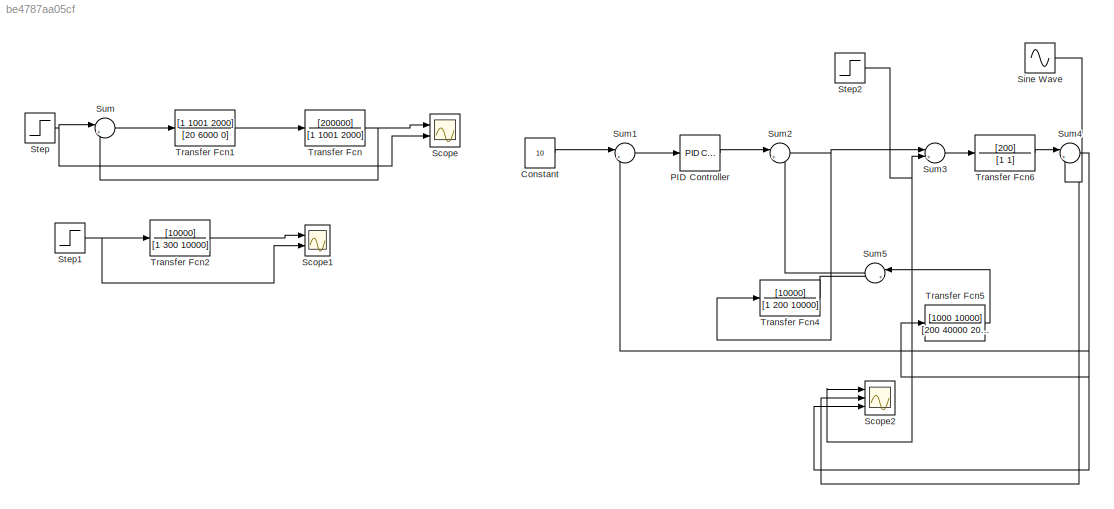
MODEL slx_be4787aa05cf
KIND model
CONFIG AbsTol = auto
CONFIG FixedStep = auto
CONFIG MaxStep = auto
CONFIG MinStep = auto
CONFIG RelTol = 1e-3
CONFIG SampleTimeConstraint = Unconstrained
CONFIG Solver = VariableStepAuto
CONFIG SolverMode = Auto
CONFIG SolverName = VariableStepAuto
CONFIG StartTime = 0.0
CONFIG StopTime = 10.0
BLOCK [Constant] Constant
  SampleTime = 0.5
  Value = 10
BLOCK [Reference] PID Controller  REF=simulink/Continuous/PID Controller
  Ports = [1, 1]
  SourceBlock = simulink/Continuous/PID Controller
  SourceType = PID 1dof
BLOCK [Scope] Scope
  NumInputPorts = 2
  Ports = [2]
  ScopeSpecificationString = Simulink.scopes.TimeScopeBlockCfg('CurrentConfiguration', extmgr.ConfigurationSet(extmgr.Configuration('Core','General UI',true),extmgr.Configuration('Core','Source UI',true),extmgr.Configuration('Sources','WiredSimulink',true),extmgr.Configuration('Visuals','Time Domain',true,'SerializedDisplays',{struct('MinYLimReal','-0.125','MaxYLimReal','1.125','YLabelReal','','MinYLimMag','0.00000','MaxYLimM...<+1423ch>
BLOCK [Scope] Scope1
  NumInputPorts = 2
  Ports = [2]
  ScopeSpecificationString = Simulink.scopes.TimeScopeBlockCfg('CurrentConfiguration', extmgr.ConfigurationSet(extmgr.Configuration('Core','General UI',true),extmgr.Configuration('Core','Source UI',true),extmgr.Configuration('Sources','WiredSimulink',true,'DataLoggingVariableName','ScopeData1'),extmgr.Configuration('Visuals','Time Domain',true,'SerializedDisplays',{struct('MinYLimReal','-0.08894','MaxYLimReal','1.3111','YLabe...<+1447ch>
BLOCK [Scope] Scope2
  NumInputPorts = 3
  Ports = [3]
  ScopeSpecificationString = Simulink.scopes.TimeScopeBlockCfg('CurrentConfiguration', extmgr.ConfigurationSet(extmgr.Configuration('Core','General UI',true),extmgr.Configuration('Core','Source UI',true),extmgr.Configuration('Sources','WiredSimulink',true,'DataLoggingVariableName','ScopeData1'),extmgr.Configuration('Visuals','Time Domain',true,'TimeAxisLabels','All','SerializedDisplays',{struct('MinYLimReal','-0.125','MaxYLim...<+2802ch>
BLOCK [Sin] Sine Wave
  Frequency = 35/6.2*3.14
  Ports = [0, 1]
  SampleTime = 0
BLOCK [Step] Step
  SampleTime = 0
BLOCK [Step] Step1
  SampleTime = 0
BLOCK [Step] Step2
  SampleTime = 1
BLOCK [Sum] Sum
  IconShape = round
  InputSameDT = off
  Inputs = |+-
  OutDataTypeStr = Inherit: Inherit via internal rule
  Ports = [2, 1]
  SaturateOnIntegerOverflow = off
BLOCK [Sum] Sum1
  IconShape = round
  InputSameDT = off
  Inputs = |+-
  OutDataTypeStr = Inherit: Inherit via internal rule
  Ports = [2, 1]
  SaturateOnIntegerOverflow = off
BLOCK [Sum] Sum2
  IconShape = round
  InputSameDT = off
  Inputs = |+-
  OutDataTypeStr = Inherit: Inherit via internal rule
  Ports = [2, 1]
  SaturateOnIntegerOverflow = off
BLOCK [Sum] Sum3
  IconShape = round
  InputSameDT = off
  Inputs = |++
  OutDataTypeStr = Inherit: Inherit via internal rule
  Ports = [2, 1]
  SaturateOnIntegerOverflow = off
BLOCK [Sum] Sum4
  IconShape = round
  InputSameDT = off
  Inputs = |++
  OutDataTypeStr = Inherit: Inherit via internal rule
  Ports = [2, 1]
  SaturateOnIntegerOverflow = off
BLOCK [Sum] Sum5
  IconShape = round
  InputSameDT = off
  Inputs = |+-
  OutDataTypeStr = Inherit: Inherit via internal rule
  Ports = [2, 1]
  SaturateOnIntegerOverflow = off
BLOCK [TransferFcn] Transfer Fcn
  Denominator = [1 1001 2000]
  Numerator = [200000]
BLOCK [TransferFcn] Transfer Fcn1
  Denominator = [20 6000 0]
  Numerator = [1 1001 2000]
BLOCK [TransferFcn] Transfer Fcn2
  Denominator = [1 300 10000]
  Numerator = [10000]
BLOCK [TransferFcn] Transfer Fcn4
  Denominator = [1 200 10000]
  Numerator = [10000]
BLOCK [TransferFcn] Transfer Fcn5
  Denominator = [200 40000 2000000]
  Numerator = [1000 10000]
BLOCK [TransferFcn] Transfer Fcn6
  Denominator = [1 1]
  Numerator = [200]
LINE Constant:1 -> Sum1:1
LINE PID Controller:1 -> Sum2:1
NET Sine Wave:1 -> Scope2:2, Sum4:2
NET Step1:1 -> Scope1:2, Transfer Fcn2:1
NET Step2:1 -> Scope2:1, Sum3:2
NET Step:1 -> Scope:2, Sum:1
LINE Sum1:1 -> PID Controller:1
NET Sum2:1 -> Sum3:1, Transfer Fcn4:1
LINE Sum3:1 -> Transfer Fcn6:1
NET Sum4:1 -> Scope2:3, Sum1:2, Transfer Fcn5:1
LINE Sum5:1 -> Sum2:2
LINE Sum:1 -> Transfer Fcn1:1
LINE Transfer Fcn1:1 -> Transfer Fcn:1
LINE Transfer Fcn2:1 -> Scope1:1
LINE Transfer Fcn4:1 -> Sum5:2
LINE Transfer Fcn5:1 -> Sum5:1
LINE Transfer Fcn6:1 -> Sum4:1
NET Transfer Fcn:1 -> Scope:1, Sum:2
note: NET lines group one-source signal fan-out (src -> all destinations, sorted); 1:1 wires keep LINE
